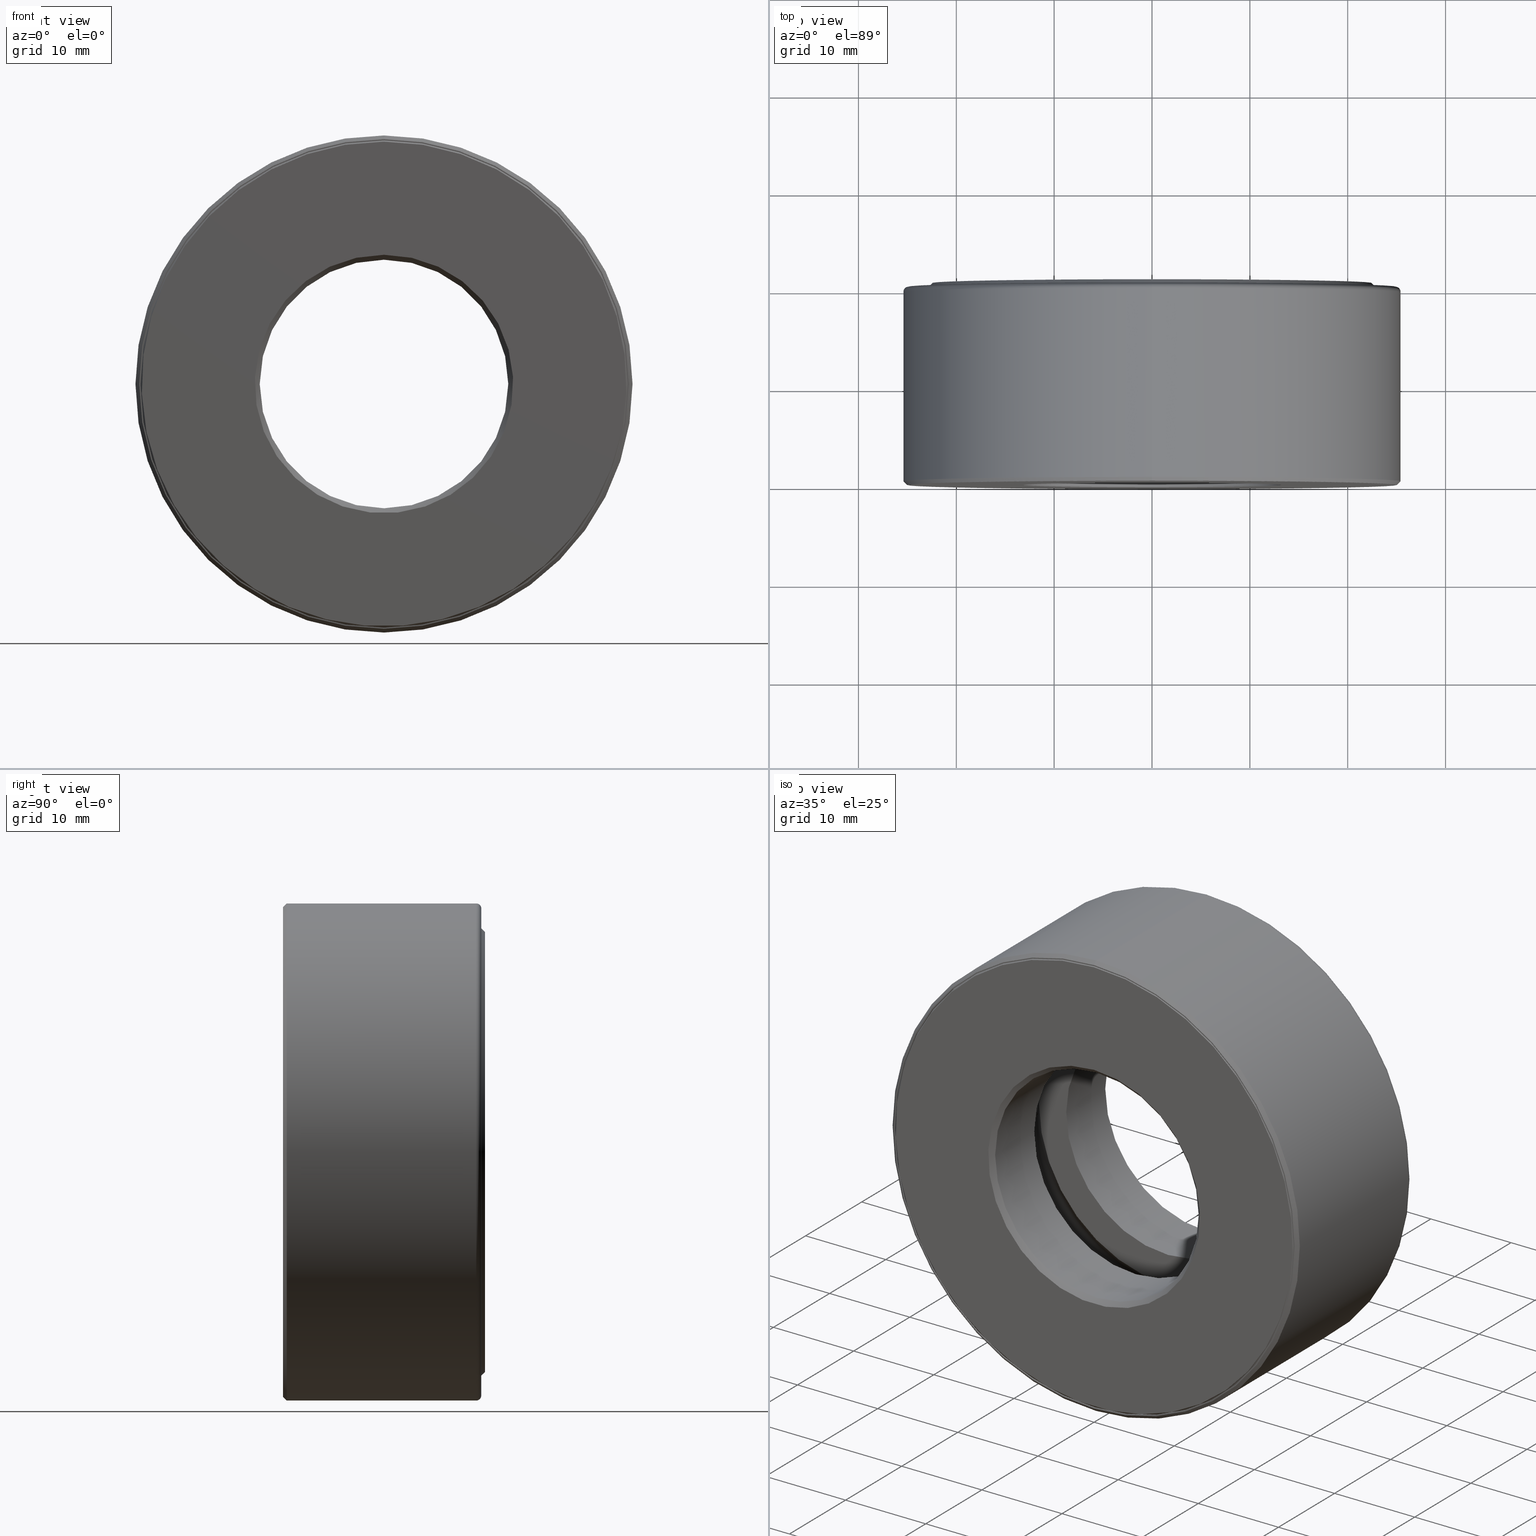
[diagram: canonical four-view strip — front | top / right | iso, engineering-drawing reading convention]
A machine part, canonical four-view strip (front | top / right | iso — engineering-drawing reading convention). The complete STEP part file that produces these views, byte-faithful:
ISO-10303-21;
HEADER;
FILE_DESCRIPTION (( 'STEP AP203' ),
    '1' );
FILE_NAME ('T-100-7.step',
    '2016-06-29T18:27:14',
    ( '' ),
    ( '' ),
    'SwSTEP 2.0',
    'SolidWorks 2016',
    '' );
FILE_SCHEMA (( 'CONFIG_CONTROL_DESIGN' ));
ENDSEC;

DATA;
#1 = DIRECTION ( 'NONE',  ( -0.0000000000000000000, 1.000000000000000000, -0.0000000000000000000 ) ) ;
#2 = APPROVAL_ROLE ( '' ) ;
#3 = FACE_BOUND ( 'NONE', #256, .T. ) ;
#4 = CARTESIAN_POINT ( 'NONE',  ( 0.0000000000000000000, 0.8125000000000001100, 0.0000000000000000000 ) ) ;
#5 = CLOSED_SHELL ( 'NONE', ( #597 ) ) ;
#6 = VERTEX_POINT ( 'NONE', #83 ) ;
#7 = ORIENTED_EDGE ( 'NONE', *, *, #259, .T. ) ;
#8 = DIRECTION ( 'NONE',  ( -0.0000000000000000000, 1.000000000000000000, -0.0000000000000000000 ) ) ;
#9 = EDGE_CURVE ( 'NONE', #76, #76, #583, .T. ) ;
#10 = PRODUCT_DEFINITION_FORMATION_WITH_SPECIFIED_SOURCE ( 'ANY', '', #509, .NOT_KNOWN. ) ;
#11 = TOROIDAL_SURFACE ( 'NONE', #329, 0.7834999999999998600, 0.1874999999999999700 ) ;
#12 = PERSON_AND_ORGANIZATION ( #556, #299 ) ;
#13 = EDGE_LOOP ( 'NONE', ( #81 ) ) ;
#14 = PLANE ( 'NONE',  #156 ) ;
#15 = SPHERICAL_SURFACE ( 'NONE', #41, 0.1874999999999999700 ) ;
#16 = CIRCLE ( 'NONE', #369, 0.9334999999999998900 ) ;
#17 = DIRECTION ( 'NONE',  ( 0.0000000000000000000, 0.0000000000000000000, 1.000000000000000000 ) ) ;
#18 = DIRECTION ( 'NONE',  ( 0.0000000000000000000, 0.0000000000000000000, -1.000000000000000000 ) ) ;
#19 = EDGE_CURVE ( 'NONE', #231, #231, #213, .T. ) ;
#20 = CC_DESIGN_PERSON_AND_ORGANIZATION_ASSIGNMENT ( #494, #569, ( #10 ) ) ;
#21 = VERTEX_POINT ( 'NONE', #174 ) ;
#22 = EDGE_LOOP ( 'NONE', ( #284 ) ) ;
#23 = DIRECTION ( 'NONE',  ( -0.0000000000000000000, 1.000000000000000000, -0.0000000000000000000 ) ) ;
#24 = CARTESIAN_POINT ( 'NONE',  ( 0.0000000000000000000, 0.7774999999999999700, 0.0000000000000000000 ) ) ;
#25 = CARTESIAN_POINT ( 'NONE',  ( 0.0000000000000000000, 0.02000000000000033300, 0.0000000000000000000 ) ) ;
#26 = CC_DESIGN_APPROVAL ( #330, ( #126 ) ) ;
#27 = DIRECTION ( 'NONE',  ( -0.0000000000000000000, 1.000000000000000000, -0.0000000000000000000 ) ) ;
#28 = ADVANCED_FACE ( 'NONE', ( #445, #161 ), #66, .F. ) ;
#29 = CIRCLE ( 'NONE', #513, 0.9799999999999999800 ) ;
#30 = DIRECTION ( 'NONE',  ( 0.0000000000000000000, -1.000000000000000000, 0.0000000000000000000 ) ) ;
#31 = EDGE_CURVE ( 'NONE', #313, #313, #105, .T. ) ;
#32 = DIRECTION ( 'NONE',  ( 0.0000000000000000000, 0.0000000000000000000, 1.000000000000000000 ) ) ;
#33 = APPROVAL_DATE_TIME ( #141, #571 ) ;
#34 = CLOSED_SHELL ( 'NONE', ( #474, #218, #148, #28, #560, #237, #96, #428 ) ) ;
#35 = ORIENTED_EDGE ( 'NONE', *, *, #539, .T. ) ;
#36 = DIRECTION ( 'NONE',  ( -0.0000000000000000000, 1.000000000000000000, -0.0000000000000000000 ) ) ;
#37 = EDGE_LOOP ( 'NONE', ( #540 ) ) ;
#38 = DIRECTION ( 'NONE',  ( 6.982962677686265900E-015, -0.0000000000000000000, 1.000000000000000000 ) ) ;
#39 = FACE_BOUND ( 'NONE', #71, .T. ) ;
#40 = EDGE_CURVE ( 'NONE', #171, #171, #191, .T. ) ;
#41 = AXIS2_PLACEMENT_3D ( 'NONE', #325, #38, #89 ) ;
#42 = CIRCLE ( 'NONE', #305, 0.5000000000000001100 ) ;
#43 = DATE_TIME_ROLE ( 'classification_date' ) ;
#44 = PERSON_AND_ORGANIZATION ( #556, #299 ) ;
#45 = ORIENTED_EDGE ( 'NONE', *, *, #31, .F. ) ;
#46 = VERTEX_POINT ( 'NONE', #124 ) ;
#47 = FACE_OUTER_BOUND ( 'NONE', #121, .T. ) ;
#48 = APPROVAL_STATUS ( 'not_yet_approved' ) ;
#49 = ORIENTED_EDGE ( 'NONE', *, *, #547, .T. ) ;
#50 = CARTESIAN_POINT ( 'NONE',  ( 0.0000000000000000000, 0.4062500000000000600, 0.0000000000000000000 ) ) ;
#51 = ORIENTED_EDGE ( 'NONE', *, *, #592, .F. ) ;
#52 = ADVANCED_FACE ( 'NONE', ( #176, #319 ), #220, .F. ) ;
#53 = AXIS2_PLACEMENT_3D ( 'NONE', #521, #528, #343 ) ;
#54 = AXIS2_PLACEMENT_3D ( 'NONE', #24, #122, #493 ) ;
#55 = CARTESIAN_POINT ( 'NONE',  ( 0.0000000000000000000, 0.7245000000000001400, 0.0000000000000000000 ) ) ;
#56 = CIRCLE ( 'NONE', #93, 0.9799999999999997600 ) ;
#57 = COORDINATED_UNIVERSAL_TIME_OFFSET ( 5, 0, .BEHIND. ) ;
#58 = AXIS2_PLACEMENT_3D ( 'NONE', #170, #404, #358 ) ;
#59 = DIRECTION ( 'NONE',  ( -0.0000000000000000000, 1.000000000000000000, 0.0000000000000000000 ) ) ;
#60 = VERTEX_POINT ( 'NONE', #501 ) ;
#61 = CONICAL_SURFACE ( 'NONE', #275, 0.9749999999999999800, 0.7853981633974246300 ) ;
#62 = DIRECTION ( 'NONE',  ( 0.0000000000000000000, 0.0000000000000000000, 1.000000000000000000 ) ) ;
#63 = EDGE_CURVE ( 'NONE', #278, #278, #112, .T. ) ;
#64 = COORDINATED_UNIVERSAL_TIME_OFFSET ( 5, 0, .BEHIND. ) ;
#65 = CARTESIAN_POINT ( 'NONE',  ( 0.0000000000000000000, 0.2937500000000000700, 0.0000000000000000000 ) ) ;
#66 = CYLINDRICAL_SURFACE ( 'NONE', #72, 0.5000000000000001100 ) ;
#67 = AXIS2_PLACEMENT_3D ( 'NONE', #215, #257, #311 ) ;
#68 = EDGE_LOOP ( 'NONE', ( #7 ) ) ;
#69 = FACE_BOUND ( 'NONE', #599, .T. ) ;
#70 = CARTESIAN_POINT ( 'NONE',  ( 0.0000000000000000000, 0.7974999999999999900, 0.0000000000000000000 ) ) ;
#71 = EDGE_LOOP ( 'NONE', ( #506 ) ) ;
#72 = AXIS2_PLACEMENT_3D ( 'NONE', #234, #601, #376 ) ;
#73 = DIRECTION ( 'NONE',  ( 0.0000000000000000000, 0.0000000000000000000, 1.000000000000000000 ) ) ;
#74 = MANIFOLD_SOLID_BREP ( 'Revolve2[1]', #566 ) ;
#75 = VERTEX_POINT ( 'NONE', #410 ) ;
#76 = VERTEX_POINT ( 'NONE', #372 ) ;
#77 = CIRCLE ( 'NONE', #447, 0.9799999999999997600 ) ;
#78 = CARTESIAN_POINT ( 'NONE',  ( 0.0000000000000000000, 0.005000000000000119800, 0.0000000000000000000 ) ) ;
#79 = FACE_OUTER_BOUND ( 'NONE', #365, .T. ) ;
#80 = EDGE_LOOP ( 'NONE', ( #371 ) ) ;
#81 = ORIENTED_EDGE ( 'NONE', *, *, #604, .F. ) ;
#82 = CARTESIAN_POINT ( 'NONE',  ( 0.0000000000000000000, 0.7974999999999999900, 0.9799999999999999800 ) ) ;
#83 = CARTESIAN_POINT ( 'NONE',  ( 0.0000000000000000000, 0.5187500000000000400, 0.5000000000000001100 ) ) ;
#84 = FACE_OUTER_BOUND ( 'NONE', #436, .T. ) ;
#85 = EDGE_CURVE ( 'NONE', #296, #296, #497, .T. ) ;
#86 = AXIS2_PLACEMENT_3D ( 'NONE', #507, #224, #320 ) ;
#87 = DIRECTION ( 'NONE',  ( 0.0000000000000000000, 0.0000000000000000000, 1.000000000000000000 ) ) ;
#88 = EDGE_LOOP ( 'NONE', ( #327 ) ) ;
#89 = DIRECTION ( 'NONE',  ( -1.000000000000000000, 0.0000000000000000000, 6.982962677686265900E-015 ) ) ;
#90 = DIRECTION ( 'NONE',  ( -0.0000000000000000000, 1.000000000000000000, -0.0000000000000000000 ) ) ;
#91 = CARTESIAN_POINT ( 'NONE',  ( 0.0000000000000000000, 0.4062500000000000600, 0.0000000000000000000 ) ) ;
#92 = VERTEX_POINT ( 'NONE', #82 ) ;
#93 = AXIS2_PLACEMENT_3D ( 'NONE', #434, #351, #114 ) ;
#94 = DATE_AND_TIME ( #281, #529 ) ;
#95 = ORIENTED_EDGE ( 'NONE', *, *, #201, .F. ) ;
#96 = ADVANCED_FACE ( 'NONE', ( #79, #207 ), #536, .T. ) ;
#97 = PERSON_AND_ORGANIZATION_ROLE ( 'classification_officer' ) ;
#98 = AXIS2_PLACEMENT_3D ( 'NONE', #162, #255, #531 ) ;
#99 = DIRECTION ( 'NONE',  ( -0.0000000000000000000, 1.000000000000000000, -0.0000000000000000000 ) ) ;
#100 =( NAMED_UNIT ( * ) PLANE_ANGLE_UNIT ( ) SI_UNIT ( $, .RADIAN. ) );
#101 = CARTESIAN_POINT ( 'NONE',  ( 0.0000000000000000000, 0.7774999999999999700, 0.0000000000000000000 ) ) ;
#102 = DIRECTION ( 'NONE',  ( 0.0000000000000000000, 0.0000000000000000000, -1.000000000000000000 ) ) ;
#103 = CIRCLE ( 'NONE', #125, 0.9749999999999999800 ) ;
#104 = EDGE_LOOP ( 'NONE', ( #272 ) ) ;
#105 = CIRCLE ( 'NONE', #280, 0.5000000000000001100 ) ;
#106 = PLANE ( 'NONE',  #179 ) ;
#107 = EDGE_CURVE ( 'NONE', #185, #185, #262, .T. ) ;
#108 = AXIS2_PLACEMENT_3D ( 'NONE', #461, #267, #565 ) ;
#109 = PLANE ( 'NONE',  #360 ) ;
#110 = FACE_BOUND ( 'NONE', #212, .T. ) ;
#111 = EDGE_LOOP ( 'NONE', ( #595 ) ) ;
#112 = CIRCLE ( 'NONE', #53, 0.9849999999999999900 ) ;
#113 = CARTESIAN_POINT ( 'NONE',  ( -2.157205236932476100E-016, 0.2937500000000000700, 0.0000000000000000000 ) ) ;
#114 = DIRECTION ( 'NONE',  ( 0.0000000000000000000, 0.0000000000000000000, 1.000000000000000000 ) ) ;
#115 = AXIS2_PLACEMENT_3D ( 'NONE', #4, #567, #102 ) ;
#116 = FACE_OUTER_BOUND ( 'NONE', #302, .T. ) ;
#117 = AXIS2_PLACEMENT_3D ( 'NONE', #455, #412, #183 ) ;
#118 = EDGE_LOOP ( 'NONE', ( #189 ) ) ;
#119 = ADVANCED_FACE ( 'NONE', ( #142, #3 ), #527, .F. ) ;
#120 = PLANE ( 'NONE',  #448 ) ;
#121 = EDGE_LOOP ( 'NONE', ( #546 ) ) ;
#122 = DIRECTION ( 'NONE',  ( -0.0000000000000000000, 1.000000000000000000, -0.0000000000000000000 ) ) ;
#123 = ADVANCED_FACE ( 'NONE', ( #505, #482 ), #308, .T. ) ;
#124 = CARTESIAN_POINT ( 'NONE',  ( 0.0000000000000000000, 0.2937500000000000700, 0.9334999999999998900 ) ) ;
#125 = AXIS2_PLACEMENT_3D ( 'NONE', #294, #344, #423 ) ;
#126 = PRODUCT_DEFINITION ( 'UNKNOWN', '', #10, #530 ) ;
#127 = FACE_OUTER_BOUND ( 'NONE', #460, .T. ) ;
#128 = CARTESIAN_POINT ( 'NONE',  ( 0.0000000000000000000, 0.8125000000000001100, 0.5200000000000001300 ) ) ;
#129 = VERTEX_POINT ( 'NONE', #500 ) ;
#130 = EDGE_LOOP ( 'NONE', ( #564 ) ) ;
#131 = ORIENTED_EDGE ( 'NONE', *, *, #592, .T. ) ;
#132 = ADVANCED_FACE ( 'NONE', ( #587, #166 ), #282, .F. ) ;
#133 = CARTESIAN_POINT ( 'NONE',  ( 0.0000000000000000000, -6.616194359655631800E-017, 0.9849999999999999900 ) ) ;
#134 = AXIS2_PLACEMENT_3D ( 'NONE', #91, #138, #477 ) ;
#135 = AXIS2_PLACEMENT_3D ( 'NONE', #315, #263, #586 ) ;
#136 = ORIENTED_EDGE ( 'NONE', *, *, #107, .T. ) ;
#137 = PERSON_AND_ORGANIZATION_ROLE ( 'creator' ) ;
#138 = DIRECTION ( 'NONE',  ( -0.0000000000000000000, 1.000000000000000000, -0.0000000000000000000 ) ) ;
#139 = VERTEX_POINT ( 'NONE', #555 ) ;
#140 = FACE_OUTER_BOUND ( 'NONE', #80, .T. ) ;
#141 = DATE_AND_TIME ( #580, #363 ) ;
#142 = FACE_OUTER_BOUND ( 'NONE', #427, .T. ) ;
#143 = DIRECTION ( 'NONE',  ( 0.0000000000000000000, 0.0000000000000000000, 1.000000000000000000 ) ) ;
#144 = ORIENTED_EDGE ( 'NONE', *, *, #274, .F. ) ;
#145 = ORIENTED_EDGE ( 'NONE', *, *, #472, .F. ) ;
#146 = EDGE_LOOP ( 'NONE', ( #144 ) ) ;
#147 = FACE_OUTER_BOUND ( 'NONE', #388, .T. ) ;
#148 = ADVANCED_FACE ( 'NONE', ( #260, #557 ), #106, .T. ) ;
#149 = CARTESIAN_POINT ( 'NONE',  ( 0.0000000000000000000, 0.8125000000000001100, 0.0000000000000000000 ) ) ;
#150 = VERTEX_POINT ( 'NONE', #510 ) ;
#151 = APPROVAL_PERSON_ORGANIZATION ( #44, #526, #233 ) ;
#152 = DIRECTION ( 'NONE',  ( -0.0000000000000000000, 1.000000000000000000, -0.0000000000000000000 ) ) ;
#153 = MANIFOLD_SOLID_BREP ( 'Revolve3', #301 ) ;
#154 = SPHERICAL_SURFACE ( 'NONE', #268, 0.1874999999999999700 ) ;
#155 = CARTESIAN_POINT ( 'NONE',  ( 0.0000000000000000000, 0.8125000000000001100, 0.0000000000000000000 ) ) ;
#156 = AXIS2_PLACEMENT_3D ( 'NONE', #113, #250, #581 ) ;
#157 = CC_DESIGN_PERSON_AND_ORGANIZATION_ASSIGNMENT ( #550, #137, ( #126 ) ) ;
#158 = APPROVAL_PERSON_ORGANIZATION ( #558, #571, #190 ) ;
#159 = ORIENTED_EDGE ( 'NONE', *, *, #321, .T. ) ;
#160 = ORIENTED_EDGE ( 'NONE', *, *, #547, .F. ) ;
#161 = FACE_OUTER_BOUND ( 'NONE', #22, .T. ) ;
#162 = CARTESIAN_POINT ( 'NONE',  ( 0.0000000000000000000, 0.01499999999999997700, 0.0000000000000000000 ) ) ;
#163 = DIRECTION ( 'NONE',  ( 0.0000000000000000000, -0.0000000000000000000, -1.000000000000000000 ) ) ;
#164 = CIRCLE ( 'NONE', #502, 0.9799999999999999800 ) ;
#165 = EDGE_CURVE ( 'NONE', #462, #462, #103, .T. ) ;
#166 = FACE_OUTER_BOUND ( 'NONE', #37, .T. ) ;
#167 = CALENDAR_DATE ( 2016, 29, 6 ) ;
#168 = ORIENTED_EDGE ( 'NONE', *, *, #238, .T. ) ;
#169 = DIRECTION ( 'NONE',  ( -0.0000000000000000000, 1.000000000000000000, -0.0000000000000000000 ) ) ;
#170 = CARTESIAN_POINT ( 'NONE',  ( 0.0000000000000000000, 0.5187500000000000400, 0.0000000000000000000 ) ) ;
#171 = VERTEX_POINT ( 'NONE', #551 ) ;
#172 = DIRECTION ( 'NONE',  ( 0.0000000000000000000, -1.000000000000000000, 0.0000000000000000000 ) ) ;
#173 = FACE_OUTER_BOUND ( 'NONE', #490, .T. ) ;
#174 = CARTESIAN_POINT ( 'NONE',  ( 0.0000000000000000000, 0.7774999999999999700, 0.9799999999999999800 ) ) ;
#175 = EDGE_LOOP ( 'NONE', ( #300 ) ) ;
#176 = FACE_OUTER_BOUND ( 'NONE', #457, .T. ) ;
#177 = CARTESIAN_POINT ( 'NONE',  ( 0.0000000000000000000, 0.5187499999999999300, 0.6334999999999998400 ) ) ;
#178 = CLOSED_SHELL ( 'NONE', ( #514 ) ) ;
#179 = AXIS2_PLACEMENT_3D ( 'NONE', #289, #431, #243 ) ;
#180 =( GEOMETRIC_REPRESENTATION_CONTEXT ( 3 ) GLOBAL_UNCERTAINTY_ASSIGNED_CONTEXT ( ( #362 ) ) GLOBAL_UNIT_ASSIGNED_CONTEXT ( ( #515, #100, #426 ) ) REPRESENTATION_CONTEXT ( 'NONE', 'WORKASPACE' ) );
#181 = FACE_OUTER_BOUND ( 'NONE', #466, .T. ) ;
#182 = CARTESIAN_POINT ( 'NONE',  ( 0.0000000000000000000, 0.2937500000000001200, 0.5000000000000001100 ) ) ;
#183 = DIRECTION ( 'NONE',  ( 0.0000000000000000000, 0.0000000000000000000, 1.000000000000000000 ) ) ;
#184 = APPLICATION_CONTEXT ( 'configuration controlled 3d designs of mechanical parts and assemblies' ) ;
#185 = VERTEX_POINT ( 'NONE', #271 ) ;
#186 = FACE_OUTER_BOUND ( 'NONE', #13, .T. ) ;
#187 = PERSON_AND_ORGANIZATION_ROLE ( 'design_supplier' ) ;
#188 = DATE_AND_TIME ( #535, #317 ) ;
#189 = ORIENTED_EDGE ( 'NONE', *, *, #165, .T. ) ;
#190 = APPROVAL_ROLE ( '' ) ;
#191 = CIRCLE ( 'NONE', #598, 0.9200000000000000400 ) ;
#192 = DIRECTION ( 'NONE',  ( -0.0000000000000000000, 1.000000000000000000, 0.0000000000000000000 ) ) ;
#193 = ORIENTED_EDGE ( 'NONE', *, *, #9, .F. ) ;
#194 = SECURITY_CLASSIFICATION_LEVEL ( 'unclassified' ) ;
#195 = CIRCLE ( 'NONE', #453, 0.5000000000000000000 ) ;
#196 = DIRECTION ( 'NONE',  ( 0.0000000000000000000, 0.0000000000000000000, 1.000000000000000000 ) ) ;
#197 = FACE_BOUND ( 'NONE', #425, .T. ) ;
#198 = DIRECTION ( 'NONE',  ( 0.0000000000000000000, -1.000000000000000000, 0.0000000000000000000 ) ) ;
#199 = LOCAL_TIME ( 14, 27, 14.00000000000000000, #64 ) ;
#200 = EDGE_LOOP ( 'NONE', ( #483 ) ) ;
#201 = EDGE_CURVE ( 'NONE', #345, #345, #42, .T. ) ;
#202 = SECURITY_CLASSIFICATION ( '', '', #194 ) ;
#203 = CARTESIAN_POINT ( 'NONE',  ( 0.0000000000000000000, 0.2937500000000000700, 0.0000000000000000000 ) ) ;
#204 = CYLINDRICAL_SURFACE ( 'NONE', #395, 0.9799999999999999800 ) ;
#205 = MANIFOLD_SOLID_BREP ( 'BALLS[1]', #178 ) ;
#206 = COORDINATED_UNIVERSAL_TIME_OFFSET ( 5, 0, .BEHIND. ) ;
#207 = FACE_BOUND ( 'NONE', #389, .T. ) ;
#208 = EDGE_LOOP ( 'NONE', ( #401 ) ) ;
#209 = EDGE_LOOP ( 'NONE', ( #310 ) ) ;
#210 = AXIS2_PLACEMENT_3D ( 'NONE', #391, #198, #573 ) ;
#211 = DIRECTION ( 'NONE',  ( 0.0000000000000000000, 0.0000000000000000000, 1.000000000000000000 ) ) ;
#212 = EDGE_LOOP ( 'NONE', ( #381 ) ) ;
#213 = CIRCLE ( 'NONE', #418, 0.9334999999999998900 ) ;
#214 = DIRECTION ( 'NONE',  ( -0.0000000000000000000, 1.000000000000000000, -0.0000000000000000000 ) ) ;
#215 = CARTESIAN_POINT ( 'NONE',  ( 0.0000000000000000000, 0.0000000000000000000, 0.0000000000000000000 ) ) ;
#216 = AXIS2_PLACEMENT_3D ( 'NONE', #446, #169, #219 ) ;
#217 = DATE_AND_TIME ( #167, #309 ) ;
#218 = ADVANCED_FACE ( 'NONE', ( #116, #593 ), #11, .F. ) ;
#219 = DIRECTION ( 'NONE',  ( 0.0000000000000000000, 0.0000000000000000000, 1.000000000000000000 ) ) ;
#220 = TOROIDAL_SURFACE ( 'NONE', #134, 0.7834999999999998600, 0.1874999999999999700 ) ;
#221 = EDGE_LOOP ( 'NONE', ( #355 ) ) ;
#222 = AXIS2_PLACEMENT_3D ( 'NONE', #518, #8, #575 ) ;
#223 = AXIS2_PLACEMENT_3D ( 'NONE', #449, #548, #543 ) ;
#224 = DIRECTION ( 'NONE',  ( -0.0000000000000000000, 1.000000000000000000, -0.0000000000000000000 ) ) ;
#225 = EDGE_LOOP ( 'NONE', ( #600 ) ) ;
#226 = CARTESIAN_POINT ( 'NONE',  ( 0.0000000000000000000, 0.5187500000000000400, 0.9729999999999998600 ) ) ;
#227 = DIRECTION ( 'NONE',  ( 0.0000000000000000000, 0.0000000000000000000, 1.000000000000000000 ) ) ;
#228 = CARTESIAN_POINT ( 'NONE',  ( 0.0000000000000000000, 0.5187499999999999300, 0.9334999999999998900 ) ) ;
#229 = AXIS2_PLACEMENT_3D ( 'NONE', #432, #346, #439 ) ;
#230 = AXIS2_PLACEMENT_3D ( 'NONE', #366, #454, #374 ) ;
#231 = VERTEX_POINT ( 'NONE', #228 ) ;
#232 = ADVANCED_FACE ( 'NONE', ( #377, #197 ), #486, .F. ) ;
#233 = APPROVAL_ROLE ( '' ) ;
#234 = CARTESIAN_POINT ( 'NONE',  ( 0.0000000000000000000, 0.0000000000000000000, 0.0000000000000000000 ) ) ;
#235 = FACE_OUTER_BOUND ( 'NONE', #414, .T. ) ;
#236 =( LENGTH_UNIT ( ) NAMED_UNIT ( * ) SI_UNIT ( $, .METRE. ) );
#237 = ADVANCED_FACE ( 'NONE', ( #244, #110 ), #109, .T. ) ;
#238 = EDGE_CURVE ( 'NONE', #516, #516, #481, .T. ) ;
#239 = AXIS2_PLACEMENT_3D ( 'NONE', #591, #276, #87 ) ;
#240 = EDGE_LOOP ( 'NONE', ( #452 ) ) ;
#241 = DIRECTION ( 'NONE',  ( 0.0000000000000000000, 0.0000000000000000000, 1.000000000000000000 ) ) ;
#242 = DIRECTION ( 'NONE',  ( -0.0000000000000000000, 1.000000000000000000, -0.0000000000000000000 ) ) ;
#243 = DIRECTION ( 'NONE',  ( 0.0000000000000000000, -0.0000000000000000000, -1.000000000000000000 ) ) ;
#244 = FACE_OUTER_BOUND ( 'NONE', #495, .T. ) ;
#245 = DIRECTION ( 'NONE',  ( -0.0000000000000000000, 1.000000000000000000, 0.0000000000000000000 ) ) ;
#246 = EDGE_LOOP ( 'NONE', ( #322 ) ) ;
#247 = AXIS2_PLACEMENT_3D ( 'NONE', #456, #36, #323 ) ;
#248 = ADVANCED_FACE ( 'NONE', ( #353, #533 ), #534, .T. ) ;
#249 = DIRECTION ( 'NONE',  ( 0.0000000000000000000, 0.0000000000000000000, 1.000000000000000000 ) ) ;
#250 = DIRECTION ( 'NONE',  ( 0.0000000000000000000, -1.000000000000000000, 0.0000000000000000000 ) ) ;
#251 = CIRCLE ( 'NONE', #117, 0.9200000000000000400 ) ;
#252 = AXIS2_PLACEMENT_3D ( 'NONE', #400, #541, #485 ) ;
#253 = DIRECTION ( 'NONE',  ( 0.0000000000000000000, 0.0000000000000000000, 1.000000000000000000 ) ) ;
#254 = EDGE_LOOP ( 'NONE', ( #45 ) ) ;
#255 = DIRECTION ( 'NONE',  ( -0.0000000000000000000, 1.000000000000000000, -0.0000000000000000000 ) ) ;
#256 = EDGE_LOOP ( 'NONE', ( #131 ) ) ;
#257 = DIRECTION ( 'NONE',  ( -0.0000000000000000000, 1.000000000000000000, -0.0000000000000000000 ) ) ;
#258 = DIRECTION ( 'NONE',  ( -0.0000000000000000000, 1.000000000000000000, -0.0000000000000000000 ) ) ;
#259 = EDGE_CURVE ( 'NONE', #92, #92, #164, .T. ) ;
#260 = FACE_BOUND ( 'NONE', #240, .T. ) ;
#261 = PLANE ( 'NONE',  #135 ) ;
#262 = CIRCLE ( 'NONE', #373, 0.9729999999999997500 ) ;
#263 = DIRECTION ( 'NONE',  ( -0.0000000000000000000, 1.000000000000000000, 0.0000000000000000000 ) ) ;
#264 = DIRECTION ( 'NONE',  ( 1.000000000000000000, 0.0000000000000000000, -1.047444401652940000E-014 ) ) ;
#265 = CONICAL_SURFACE ( 'NONE', #86, 0.9849999999999999900, 0.7853981633974415100 ) ;
#266 = CYLINDRICAL_SURFACE ( 'NONE', #67, 0.9729999999999997500 ) ;
#267 = DIRECTION ( 'NONE',  ( 0.0000000000000000000, 0.0000000000000000000, 1.000000000000000000 ) ) ;
#268 = AXIS2_PLACEMENT_3D ( 'NONE', #396, #264, #357 ) ;
#269 = CIRCLE ( 'NONE', #252, 1.000000000000000000 ) ;
#270 = COORDINATED_UNIVERSAL_TIME_OFFSET ( 5, 0, .BEHIND. ) ;
#271 = CARTESIAN_POINT ( 'NONE',  ( 0.0000000000000000000, 0.7245000000000001400, 0.9729999999999997500 ) ) ;
#272 = ORIENTED_EDGE ( 'NONE', *, *, #63, .F. ) ;
#273 = EDGE_LOOP ( 'NONE', ( #489 ) ) ;
#274 = EDGE_CURVE ( 'NONE', #576, #576, #269, .T. ) ;
#275 = AXIS2_PLACEMENT_3D ( 'NONE', #416, #552, #594 ) ;
#276 = DIRECTION ( 'NONE',  ( -0.0000000000000000000, 1.000000000000000000, -0.0000000000000000000 ) ) ;
#277 = CARTESIAN_POINT ( 'NONE',  ( 0.0000000000000000000, 0.2937500000000000700, 0.9799999999999997600 ) ) ;
#278 = VERTEX_POINT ( 'NONE', #133 ) ;
#279 = CYLINDRICAL_SURFACE ( 'NONE', #229, 0.9799999999999999800 ) ;
#280 = AXIS2_PLACEMENT_3D ( 'NONE', #467, #242, #143 ) ;
#281 = CALENDAR_DATE ( 2016, 29, 6 ) ;
#282 = PLANE ( 'NONE',  #210 ) ;
#283 = ORIENTED_EDGE ( 'NONE', *, *, #19, .F. ) ;
#284 = ORIENTED_EDGE ( 'NONE', *, *, #570, .F. ) ;
#285 = ORIENTED_EDGE ( 'NONE', *, *, #40, .T. ) ;
#286 = CARTESIAN_POINT ( 'NONE',  ( -9.956752322577165600E-033, 2.667820306312757000E-018, 0.0000000000000000000 ) ) ;
#287 = DIRECTION ( 'NONE',  ( -0.0000000000000000000, 1.000000000000000000, -0.0000000000000000000 ) ) ;
#288 = ADVANCED_FACE ( 'NONE', ( ), #487, .T. ) ;
#289 = CARTESIAN_POINT ( 'NONE',  ( -2.653831735418240000E-016, 0.5187500000000000400, 0.0000000000000000000 ) ) ;
#290 = EDGE_CURVE ( 'NONE', #359, #359, #77, .T. ) ;
#291 = MANIFOLD_SOLID_BREP ( 'BALLS[3]', #588 ) ;
#292 = PRODUCT_DEFINITION_SHAPE ( 'NONE', 'NONE',  #126 ) ;
#293 = CC_DESIGN_PERSON_AND_ORGANIZATION_ASSIGNMENT ( #387, #187, ( #10 ) ) ;
#294 = CARTESIAN_POINT ( 'NONE',  ( 0.0000000000000000000, -6.296055922898107200E-017, 0.0000000000000000000 ) ) ;
#295 = DIRECTION ( 'NONE',  ( 0.0000000000000000000, 0.0000000000000000000, 1.000000000000000000 ) ) ;
#296 = VERTEX_POINT ( 'NONE', #128 ) ;
#297 = DIRECTION ( 'NONE',  ( 1.000000000000000000, 0.0000000000000000000, 0.0000000000000000000 ) ) ;
#298 = CARTESIAN_POINT ( 'NONE',  ( 0.0000000000000000000, 0.0000000000000000000, 0.0000000000000000000 ) ) ;
#299 = ORGANIZATION ( 'UNSPECIFIED', 'UNSPECIFIED', '' ) ;
#300 = ORIENTED_EDGE ( 'NONE', *, *, #40, .F. ) ;
#301 = CLOSED_SHELL ( 'NONE', ( #288 ) ) ;
#302 = EDGE_LOOP ( 'NONE', ( #596 ) ) ;
#303 = CARTESIAN_POINT ( 'NONE',  ( -0.7834999999999998600, 0.4062500000000000600, 0.0000000000000000000 ) ) ;
#304 = CIRCLE ( 'NONE', #54, 0.9799999999999999800 ) ;
#305 = AXIS2_PLACEMENT_3D ( 'NONE', #469, #1, #337 ) ;
#306 = AXIS2_PLACEMENT_3D ( 'NONE', #307, #27, #496 ) ;
#307 = CARTESIAN_POINT ( 'NONE',  ( 0.0000000000000000000, 0.5187499999999999300, 0.0000000000000000000 ) ) ;
#308 = TOROIDAL_SURFACE ( 'NONE', #222, 0.9799999999999999800, 0.02000000000000005900 ) ;
#309 = LOCAL_TIME ( 14, 27, 14.00000000000000000, #57 ) ;
#310 = ORIENTED_EDGE ( 'NONE', *, *, #385, .T. ) ;
#311 = DIRECTION ( 'NONE',  ( 0.0000000000000000000, 0.0000000000000000000, 1.000000000000000000 ) ) ;
#312 = DIRECTION ( 'NONE',  ( 0.0000000000000000000, -1.000000000000000000, 0.0000000000000000000 ) ) ;
#313 = VERTEX_POINT ( 'NONE', #367 ) ;
#314 = MANIFOLD_SOLID_BREP ( 'Revolve2[2]', #34 ) ;
#315 = CARTESIAN_POINT ( 'NONE',  ( 0.0000000000000000000, 0.7774999999999999700, 0.0000000000000000000 ) ) ;
#316 = CONICAL_SURFACE ( 'NONE', #216, 0.5000000000000001100, 0.7853981633974415100 ) ;
#317 = LOCAL_TIME ( 14, 27, 14.00000000000000000, #206 ) ;
#318 = ORIENTED_EDGE ( 'NONE', *, *, #539, .F. ) ;
#319 = FACE_OUTER_BOUND ( 'NONE', #209, .T. ) ;
#320 = DIRECTION ( 'NONE',  ( 0.0000000000000000000, 0.0000000000000000000, 1.000000000000000000 ) ) ;
#321 = EDGE_CURVE ( 'NONE', #60, #60, #56, .T. ) ;
#322 = ORIENTED_EDGE ( 'NONE', *, *, #290, .T. ) ;
#323 = DIRECTION ( 'NONE',  ( 0.0000000000000000000, 0.0000000000000000000, 1.000000000000000000 ) ) ;
#324 = CIRCLE ( 'NONE', #58, 0.9729999999999998600 ) ;
#325 = CARTESIAN_POINT ( 'NONE',  ( 0.7834999999999998600, 0.4062500000000000600, -5.471151257967188600E-015 ) ) ;
#326 = DIRECTION ( 'NONE',  ( -0.0000000000000000000, 1.000000000000000000, -0.0000000000000000000 ) ) ;
#327 = ORIENTED_EDGE ( 'NONE', *, *, #274, .T. ) ;
#328 = CARTESIAN_POINT ( 'NONE',  ( 0.0000000000000000000, 0.8125000000000001100, 0.8849999999999996800 ) ) ;
#329 = AXIS2_PLACEMENT_3D ( 'NONE', #50, #287, #478 ) ;
#330 = APPROVAL ( #48, 'UNSPECIFIED' ) ;
#331 = FACE_OUTER_BOUND ( 'NONE', #356, .T. ) ;
#332 = FACE_OUTER_BOUND ( 'NONE', #273, .T. ) ;
#333 = PERSON_AND_ORGANIZATION_ROLE ( 'design_owner' ) ;
#334 = ADVANCED_FACE ( 'NONE', ( #352, #430 ), #14, .F. ) ;
#335 = ORIENTED_EDGE ( 'NONE', *, *, #321, .F. ) ;
#336 = CARTESIAN_POINT ( 'NONE',  ( 0.0000000000000000000, 0.2937500000000001200, 0.0000000000000000000 ) ) ;
#337 = DIRECTION ( 'NONE',  ( 0.0000000000000000000, 0.0000000000000000000, 1.000000000000000000 ) ) ;
#338 = CARTESIAN_POINT ( 'NONE',  ( 0.0000000000000000000, 0.8125000000000001100, 0.0000000000000000000 ) ) ;
#339 = AXIS2_PLACEMENT_3D ( 'NONE', #338, #390, #523 ) ;
#340 = CC_DESIGN_SECURITY_CLASSIFICATION ( #202, ( #10 ) ) ;
#341 = DIRECTION ( 'NONE',  ( -0.0000000000000000000, 1.000000000000000000, -0.0000000000000000000 ) ) ;
#342 = EDGE_LOOP ( 'NONE', ( #145 ) ) ;
#343 = DIRECTION ( 'NONE',  ( 0.0000000000000000000, 0.0000000000000000000, 1.000000000000000000 ) ) ;
#344 = DIRECTION ( 'NONE',  ( -0.0000000000000000000, 1.000000000000000000, -0.0000000000000000000 ) ) ;
#345 = VERTEX_POINT ( 'NONE', #182 ) ;
#346 = DIRECTION ( 'NONE',  ( -0.0000000000000000000, 1.000000000000000000, -0.0000000000000000000 ) ) ;
#347 = PERSON_AND_ORGANIZATION ( #556, #299 ) ;
#348 = EDGE_LOOP ( 'NONE', ( #476 ) ) ;
#349 = EDGE_CURVE ( 'NONE', #75, #75, #368, .T. ) ;
#350 = FACE_BOUND ( 'NONE', #225, .T. ) ;
#351 = DIRECTION ( 'NONE',  ( -0.0000000000000000000, 1.000000000000000000, -0.0000000000000000000 ) ) ;
#352 = FACE_BOUND ( 'NONE', #348, .T. ) ;
#353 = FACE_OUTER_BOUND ( 'NONE', #146, .T. ) ;
#354 = DIRECTION ( 'NONE',  ( 0.0000000000000000000, 0.0000000000000000000, 1.000000000000000000 ) ) ;
#355 = ORIENTED_EDGE ( 'NONE', *, *, #349, .T. ) ;
#356 = EDGE_LOOP ( 'NONE', ( #520 ) ) ;
#357 = DIRECTION ( 'NONE',  ( 1.047444401652940000E-014, 0.0000000000000000000, 1.000000000000000000 ) ) ;
#358 = DIRECTION ( 'NONE',  ( 0.0000000000000000000, 0.0000000000000000000, 1.000000000000000000 ) ) ;
#359 = VERTEX_POINT ( 'NONE', #277 ) ;
#360 = AXIS2_PLACEMENT_3D ( 'NONE', #149, #245, #249 ) ;
#361 = CC_DESIGN_APPROVAL ( #526, ( #10 ) ) ;
#362 = UNCERTAINTY_MEASURE_WITH_UNIT (LENGTH_MEASURE( 1.000000000000000100E-005 ), #515, 'distance_accuracy_value', 'NONE');
#363 = LOCAL_TIME ( 14, 27, 14.00000000000000000, #545 ) ;
#364 = DIRECTION ( 'NONE',  ( 0.0000000000000000000, 0.0000000000000000000, -1.000000000000000000 ) ) ;
#365 = EDGE_LOOP ( 'NONE', ( #136 ) ) ;
#366 = CARTESIAN_POINT ( 'NONE',  ( 0.0000000000000000000, 0.0000000000000000000, 0.0000000000000000000 ) ) ;
#367 = CARTESIAN_POINT ( 'NONE',  ( 0.0000000000000000000, 0.7924999999999997600, 0.5000000000000001100 ) ) ;
#368 = CIRCLE ( 'NONE', #98, 0.9999999999999998900 ) ;
#369 = AXIS2_PLACEMENT_3D ( 'NONE', #203, #578, #295 ) ;
#370 = CARTESIAN_POINT ( 'NONE',  ( 0.0000000000000000000, 6.829619984160658000E-017, 0.5200000000000000200 ) ) ;
#371 = ORIENTED_EDGE ( 'NONE', *, *, #201, .T. ) ;
#372 = CARTESIAN_POINT ( 'NONE',  ( 0.0000000000000000000, 0.2937500000000001200, 0.6334999999999998400 ) ) ;
#373 = AXIS2_PLACEMENT_3D ( 'NONE', #55, #99, #393 ) ;
#374 = DIRECTION ( 'NONE',  ( 0.0000000000000000000, 0.0000000000000000000, 1.000000000000000000 ) ) ;
#375 = FACE_OUTER_BOUND ( 'NONE', #175, .T. ) ;
#376 = DIRECTION ( 'NONE',  ( 0.0000000000000000000, 0.0000000000000000000, 1.000000000000000000 ) ) ;
#377 = FACE_OUTER_BOUND ( 'NONE', #104, .T. ) ;
#378 = APPROVAL_STATUS ( 'not_yet_approved' ) ;
#379 = DATE_AND_TIME ( #407, #199 ) ;
#380 = DIRECTION ( 'NONE',  ( -0.0000000000000000000, 1.000000000000000000, -0.0000000000000000000 ) ) ;
#381 = ORIENTED_EDGE ( 'NONE', *, *, #85, .F. ) ;
#382 = ADVANCED_BREP_SHAPE_REPRESENTATION ( 'T-100-7', ( #74, #314, #153, #205, #405, #291, #108 ), #180 ) ;
#383 = APPROVAL_STATUS ( 'not_yet_approved' ) ;
#384 = FACE_BOUND ( 'NONE', #254, .T. ) ;
#385 = EDGE_CURVE ( 'NONE', #46, #46, #16, .T. ) ;
#386 = CC_DESIGN_PERSON_AND_ORGANIZATION_ASSIGNMENT ( #347, #97, ( #202 ) ) ;
#387 = PERSON_AND_ORGANIZATION ( #556, #299 ) ;
#388 = EDGE_LOOP ( 'NONE', ( #537 ) ) ;
#389 = EDGE_LOOP ( 'NONE', ( #475 ) ) ;
#390 = DIRECTION ( 'NONE',  ( -0.0000000000000000000, 1.000000000000000000, -0.0000000000000000000 ) ) ;
#391 = CARTESIAN_POINT ( 'NONE',  ( 7.513860937629951600E-017, 0.2937500000000001200, 0.0000000000000000000 ) ) ;
#392 = CONICAL_SURFACE ( 'NONE', #492, 0.5000000000000000000, 0.7853981633974431700 ) ;
#393 = DIRECTION ( 'NONE',  ( 0.0000000000000000000, 0.0000000000000000000, 1.000000000000000000 ) ) ;
#394 = AXIS2_PLACEMENT_3D ( 'NONE', #155, #23, #354 ) ;
#395 = AXIS2_PLACEMENT_3D ( 'NONE', #498, #214, #450 ) ;
#396 = CARTESIAN_POINT ( 'NONE',  ( -8.206726886950784100E-015, 0.4062500000000000600, -0.7834999999999998600 ) ) ;
#397 = CIRCLE ( 'NONE', #247, 0.5200000000000000200 ) ;
#398 = FACE_BOUND ( 'NONE', #438, .T. ) ;
#399 = DIRECTION ( 'NONE',  ( -0.0000000000000000000, 1.000000000000000000, -0.0000000000000000000 ) ) ;
#400 = CARTESIAN_POINT ( 'NONE',  ( 0.0000000000000000000, 0.7774999999999999700, 0.0000000000000000000 ) ) ;
#401 = ORIENTED_EDGE ( 'NONE', *, *, #107, .F. ) ;
#402 = ORIENTED_EDGE ( 'NONE', *, *, #19, .T. ) ;
#403 = CIRCLE ( 'NONE', #306, 0.6334999999999998400 ) ;
#404 = DIRECTION ( 'NONE',  ( -0.0000000000000000000, 1.000000000000000000, -0.0000000000000000000 ) ) ;
#405 = MANIFOLD_SOLID_BREP ( 'BALLS[2]', #5 ) ;
#406 = DIRECTION ( 'NONE',  ( -0.0000000000000000000, 1.000000000000000000, -0.0000000000000000000 ) ) ;
#407 = CALENDAR_DATE ( 2016, 29, 6 ) ;
#408 = DIRECTION ( 'NONE',  ( 0.0000000000000000000, -0.0000000000000000000, -1.000000000000000000 ) ) ;
#409 = CARTESIAN_POINT ( 'NONE',  ( 8.969279409578062500E-016, 0.5187500000000000400, 0.0000000000000000000 ) ) ;
#410 = CARTESIAN_POINT ( 'NONE',  ( 0.0000000000000000000, 0.01499999999999997700, 0.9999999999999998900 ) ) ;
#411 = PERSON_AND_ORGANIZATION ( #556, #299 ) ;
#412 = DIRECTION ( 'NONE',  ( -0.0000000000000000000, 1.000000000000000000, -0.0000000000000000000 ) ) ;
#413 = CC_DESIGN_DATE_AND_TIME_ASSIGNMENT ( #188, #43, ( #202 ) ) ;
#414 = EDGE_LOOP ( 'NONE', ( #49 ) ) ;
#415 = EDGE_LOOP ( 'NONE', ( #318 ) ) ;
#416 = CARTESIAN_POINT ( 'NONE',  ( 0.0000000000000000000, -6.296055922898107200E-017, 0.0000000000000000000 ) ) ;
#417 = CARTESIAN_POINT ( 'NONE',  ( 0.0000000000000000000, 0.5187499999999999300, 0.0000000000000000000 ) ) ;
#418 = AXIS2_PLACEMENT_3D ( 'NONE', #417, #380, #464 ) ;
#419 = ADVANCED_FACE ( 'NONE', ( #605, #235 ), #279, .F. ) ;
#420 = FACE_BOUND ( 'NONE', #118, .T. ) ;
#421 = ADVANCED_FACE ( 'NONE', ( ), #154, .T. ) ;
#422 = APPROVAL_DATE_TIME ( #379, #330 ) ;
#423 = DIRECTION ( 'NONE',  ( 0.0000000000000000000, 0.0000000000000000000, 1.000000000000000000 ) ) ;
#424 = ORIENTED_EDGE ( 'NONE', *, *, #290, .F. ) ;
#425 = EDGE_LOOP ( 'NONE', ( #159 ) ) ;
#426 =( NAMED_UNIT ( * ) SI_UNIT ( $, .STERADIAN. ) SOLID_ANGLE_UNIT ( ) );
#427 = EDGE_LOOP ( 'NONE', ( #484 ) ) ;
#428 = ADVANCED_FACE ( 'NONE', ( #127, #442 ), #266, .T. ) ;
#429 = EDGE_CURVE ( 'NONE', #139, #139, #195, .T. ) ;
#430 = FACE_OUTER_BOUND ( 'NONE', #246, .T. ) ;
#431 = DIRECTION ( 'NONE',  ( 0.0000000000000000000, -1.000000000000000000, 0.0000000000000000000 ) ) ;
#432 = CARTESIAN_POINT ( 'NONE',  ( 0.0000000000000000000, 0.0000000000000000000, 0.0000000000000000000 ) ) ;
#433 = VERTEX_POINT ( 'NONE', #226 ) ;
#434 = CARTESIAN_POINT ( 'NONE',  ( 0.0000000000000000000, -6.398779871991658700E-017, 0.0000000000000000000 ) ) ;
#435 = EDGE_LOOP ( 'NONE', ( #283 ) ) ;
#436 = EDGE_LOOP ( 'NONE', ( #51 ) ) ;
#437 = ADVANCED_FACE ( 'NONE', ( #517, #590 ), #444, .F. ) ;
#438 = EDGE_LOOP ( 'NONE', ( #285 ) ) ;
#439 = DIRECTION ( 'NONE',  ( 0.0000000000000000000, 0.0000000000000000000, 1.000000000000000000 ) ) ;
#440 = AXIS2_PLACEMENT_3D ( 'NONE', #286, #192, #241 ) ;
#441 = CC_DESIGN_PERSON_AND_ORGANIZATION_ASSIGNMENT ( #411, #333, ( #509 ) ) ;
#442 = FACE_OUTER_BOUND ( 'NONE', #208, .T. ) ;
#443 = ORIENTED_EDGE ( 'NONE', *, *, #604, .T. ) ;
#444 = PLANE ( 'NONE',  #480 ) ;
#445 = FACE_OUTER_BOUND ( 'NONE', #200, .T. ) ;
#446 = CARTESIAN_POINT ( 'NONE',  ( 0.0000000000000000000, 0.7924999999999997600, 0.0000000000000000000 ) ) ;
#447 = AXIS2_PLACEMENT_3D ( 'NONE', #65, #538, #62 ) ;
#448 = AXIS2_PLACEMENT_3D ( 'NONE', #409, #172, #408 ) ;
#449 = CARTESIAN_POINT ( 'NONE',  ( 2.735575628983594300E-015, 0.4062500000000000600, 0.7834999999999998600 ) ) ;
#450 = DIRECTION ( 'NONE',  ( 0.0000000000000000000, 0.0000000000000000000, 1.000000000000000000 ) ) ;
#451 = APPROVAL_PERSON_ORGANIZATION ( #12, #330, #2 ) ;
#452 = ORIENTED_EDGE ( 'NONE', *, *, #570, .T. ) ;
#453 = AXIS2_PLACEMENT_3D ( 'NONE', #544, #258, #73 ) ;
#454 = DIRECTION ( 'NONE',  ( -0.0000000000000000000, 1.000000000000000000, -0.0000000000000000000 ) ) ;
#455 = CARTESIAN_POINT ( 'NONE',  ( 0.0000000000000000000, 0.7974999999999999900, 0.0000000000000000000 ) ) ;
#456 = CARTESIAN_POINT ( 'NONE',  ( 0.0000000000000000000, 6.829619984160658000E-017, 0.0000000000000000000 ) ) ;
#457 = EDGE_LOOP ( 'NONE', ( #193 ) ) ;
#458 = AXIS2_PLACEMENT_3D ( 'NONE', #582, #59, #253 ) ;
#459 = CC_DESIGN_DATE_AND_TIME_ASSIGNMENT ( #94, #603, ( #126 ) ) ;
#460 = EDGE_LOOP ( 'NONE', ( #35 ) ) ;
#461 = CARTESIAN_POINT ( 'NONE',  ( 0.0000000000000000000, 0.0000000000000000000, 0.0000000000000000000 ) ) ;
#462 = VERTEX_POINT ( 'NONE', #559 ) ;
#463 = APPLICATION_CONTEXT ( 'configuration controlled 3d designs of mechanical parts and assemblies' ) ;
#464 = DIRECTION ( 'NONE',  ( 0.0000000000000000000, 0.0000000000000000000, 1.000000000000000000 ) ) ;
#465 = EDGE_LOOP ( 'NONE', ( #335 ) ) ;
#466 = EDGE_LOOP ( 'NONE', ( #443 ) ) ;
#467 = CARTESIAN_POINT ( 'NONE',  ( 0.0000000000000000000, 0.7924999999999997600, 0.0000000000000000000 ) ) ;
#468 = ADVANCED_FACE ( 'NONE', ( #84, #39 ), #392, .F. ) ;
#469 = CARTESIAN_POINT ( 'NONE',  ( 0.0000000000000000000, 0.2937500000000001200, 0.0000000000000000000 ) ) ;
#470 = FACE_OUTER_BOUND ( 'NONE', #465, .T. ) ;
#471 = MECHANICAL_CONTEXT ( 'NONE', #463, 'mechanical' ) ;
#472 = EDGE_CURVE ( 'NONE', #561, #561, #403, .T. ) ;
#473 = CC_DESIGN_APPROVAL ( #571, ( #202 ) ) ;
#474 = ADVANCED_FACE ( 'NONE', ( #69, #553 ), #120, .T. ) ;
#475 = ORIENTED_EDGE ( 'NONE', *, *, #238, .F. ) ;
#476 = ORIENTED_EDGE ( 'NONE', *, *, #385, .F. ) ;
#477 = DIRECTION ( 'NONE',  ( 0.0000000000000000000, 0.0000000000000000000, 1.000000000000000000 ) ) ;
#478 = DIRECTION ( 'NONE',  ( 0.0000000000000000000, 0.0000000000000000000, 1.000000000000000000 ) ) ;
#479 = AXIS2_PLACEMENT_3D ( 'NONE', #303, #18, #297 ) ;
#480 = AXIS2_PLACEMENT_3D ( 'NONE', #70, #312, #163 ) ;
#481 = CIRCLE ( 'NONE', #394, 0.8849999999999996800 ) ;
#482 = FACE_OUTER_BOUND ( 'NONE', #88, .T. ) ;
#483 = ORIENTED_EDGE ( 'NONE', *, *, #31, .T. ) ;
#484 = ORIENTED_EDGE ( 'NONE', *, *, #165, .F. ) ;
#485 = DIRECTION ( 'NONE',  ( 0.0000000000000000000, 0.0000000000000000000, 1.000000000000000000 ) ) ;
#486 = PLANE ( 'NONE',  #458 ) ;
#487 = SPHERICAL_SURFACE ( 'NONE', #479, 0.1874999999999999700 ) ;
#488 = VERTEX_POINT ( 'NONE', #370 ) ;
#489 = ORIENTED_EDGE ( 'NONE', *, *, #85, .T. ) ;
#490 = EDGE_LOOP ( 'NONE', ( #160 ) ) ;
#491 = CARTESIAN_POINT ( 'NONE',  ( 0.0000000000000000000, 0.0000000000000000000, 0.0000000000000000000 ) ) ;
#492 = AXIS2_PLACEMENT_3D ( 'NONE', #25, #30, #364 ) ;
#493 = DIRECTION ( 'NONE',  ( 0.0000000000000000000, 0.0000000000000000000, 1.000000000000000000 ) ) ;
#494 = PERSON_AND_ORGANIZATION ( #556, #299 ) ;
#495 = EDGE_LOOP ( 'NONE', ( #168 ) ) ;
#496 = DIRECTION ( 'NONE',  ( 0.0000000000000000000, 0.0000000000000000000, 1.000000000000000000 ) ) ;
#497 = CIRCLE ( 'NONE', #339, 0.5200000000000001300 ) ;
#498 = CARTESIAN_POINT ( 'NONE',  ( 0.0000000000000000000, 0.0000000000000000000, 0.0000000000000000000 ) ) ;
#499 = CYLINDRICAL_SURFACE ( 'NONE', #230, 0.9200000000000000400 ) ;
#500 = CARTESIAN_POINT ( 'NONE',  ( 0.0000000000000000000, 0.7974999999999999900, 0.9200000000000000400 ) ) ;
#501 = CARTESIAN_POINT ( 'NONE',  ( 0.0000000000000000000, -6.398779871991658700E-017, 0.9799999999999997600 ) ) ;
#502 = AXIS2_PLACEMENT_3D ( 'NONE', #532, #152, #579 ) ;
#503 = PRODUCT_RELATED_PRODUCT_CATEGORY ( 'detail', '', ( #509 ) ) ;
#504 = APPROVAL_DATE_TIME ( #217, #526 ) ;
#505 = FACE_OUTER_BOUND ( 'NONE', #130, .T. ) ;
#506 = ORIENTED_EDGE ( 'NONE', *, *, #429, .T. ) ;
#507 = CARTESIAN_POINT ( 'NONE',  ( 0.0000000000000000000, -6.616194359655631800E-017, 0.0000000000000000000 ) ) ;
#508 = CARTESIAN_POINT ( 'NONE',  ( 0.0000000000000000000, 0.7774999999999999700, 1.000000000000000000 ) ) ;
#509 = PRODUCT ( 'T-100-7', 'T-100-7', '', ( #471 ) ) ;
#510 = CARTESIAN_POINT ( 'NONE',  ( 0.0000000000000000000, 0.005000000000000119800, 0.9799999999999999800 ) ) ;
#511 = APPLICATION_PROTOCOL_DEFINITION ( 'international standard', 'config_control_design', 1994, #463 ) ;
#512 = AXIS2_PLACEMENT_3D ( 'NONE', #298, #399, #17 ) ;
#513 = AXIS2_PLACEMENT_3D ( 'NONE', #78, #326, #32 ) ;
#514 = ADVANCED_FACE ( 'NONE', ( ), #542, .T. ) ;
#515 =( CONVERSION_BASED_UNIT ( 'INCH', #563 ) LENGTH_UNIT ( ) NAMED_UNIT ( #568 ) );
#516 = VERTEX_POINT ( 'NONE', #328 ) ;
#517 = FACE_BOUND ( 'NONE', #111, .T. ) ;
#518 = CARTESIAN_POINT ( 'NONE',  ( 0.0000000000000000000, 0.7774999999999999700, 0.0000000000000000000 ) ) ;
#519 = SHAPE_DEFINITION_REPRESENTATION ( #292, #382 ) ;
#520 = ORIENTED_EDGE ( 'NONE', *, *, #584, .T. ) ;
#521 = CARTESIAN_POINT ( 'NONE',  ( 0.0000000000000000000, -6.616194359655631800E-017, 0.0000000000000000000 ) ) ;
#522 = EDGE_LOOP ( 'NONE', ( #424 ) ) ;
#523 = DIRECTION ( 'NONE',  ( 0.0000000000000000000, 0.0000000000000000000, 1.000000000000000000 ) ) ;
#524 = ADVANCED_FACE ( 'NONE', ( #173, #398 ), #261, .F. ) ;
#525 = CYLINDRICAL_SURFACE ( 'NONE', #585, 0.5000000000000000000 ) ;
#526 = APPROVAL ( #378, 'UNSPECIFIED' ) ;
#527 = PLANE ( 'NONE',  #440 ) ;
#528 = DIRECTION ( 'NONE',  ( -0.0000000000000000000, 1.000000000000000000, -0.0000000000000000000 ) ) ;
#529 = LOCAL_TIME ( 14, 27, 14.00000000000000000, #270 ) ;
#530 = DESIGN_CONTEXT ( 'detailed design', #184, 'design' ) ;
#531 = DIRECTION ( 'NONE',  ( 0.0000000000000000000, 0.0000000000000000000, 1.000000000000000000 ) ) ;
#532 = CARTESIAN_POINT ( 'NONE',  ( 0.0000000000000000000, 0.7974999999999999900, 0.0000000000000000000 ) ) ;
#533 = FACE_OUTER_BOUND ( 'NONE', #221, .T. ) ;
#534 = CYLINDRICAL_SURFACE ( 'NONE', #512, 1.000000000000000000 ) ;
#535 = CALENDAR_DATE ( 2016, 29, 6 ) ;
#536 = CONICAL_SURFACE ( 'NONE', #115, 0.8849999999999996800, 0.7853981633974482800 ) ;
#537 = ORIENTED_EDGE ( 'NONE', *, *, #349, .F. ) ;
#538 = DIRECTION ( 'NONE',  ( -0.0000000000000000000, 1.000000000000000000, -0.0000000000000000000 ) ) ;
#539 = EDGE_CURVE ( 'NONE', #433, #433, #324, .T. ) ;
#540 = ORIENTED_EDGE ( 'NONE', *, *, #9, .T. ) ;
#541 = DIRECTION ( 'NONE',  ( -0.0000000000000000000, 1.000000000000000000, -0.0000000000000000000 ) ) ;
#542 = SPHERICAL_SURFACE ( 'NONE', #223, 0.1874999999999999700 ) ;
#543 = DIRECTION ( 'NONE',  ( -3.491481338843133000E-015, 0.0000000000000000000, -1.000000000000000000 ) ) ;
#544 = CARTESIAN_POINT ( 'NONE',  ( 0.0000000000000000000, 0.02000000000000033300, 0.0000000000000000000 ) ) ;
#545 = COORDINATED_UNIVERSAL_TIME_OFFSET ( 5, 0, .BEHIND. ) ;
#546 = ORIENTED_EDGE ( 'NONE', *, *, #429, .F. ) ;
#547 = EDGE_CURVE ( 'NONE', #21, #21, #304, .T. ) ;
#548 = DIRECTION ( 'NONE',  ( -1.000000000000000000, 0.0000000000000000000, 3.491481338843133000E-015 ) ) ;
#549 = CIRCLE ( 'NONE', #239, 0.5000000000000001100 ) ;
#550 = PERSON_AND_ORGANIZATION ( #556, #299 ) ;
#551 = CARTESIAN_POINT ( 'NONE',  ( 0.0000000000000000000, 0.7774999999999999700, 0.9200000000000000400 ) ) ;
#552 = DIRECTION ( 'NONE',  ( -0.0000000000000000000, 1.000000000000000000, -0.0000000000000000000 ) ) ;
#553 = FACE_OUTER_BOUND ( 'NONE', #415, .T. ) ;
#554 = ADVANCED_FACE ( 'NONE', ( #470, #181 ), #204, .F. ) ;
#555 = CARTESIAN_POINT ( 'NONE',  ( 0.0000000000000000000, 0.02000000000000033300, 0.5000000000000000000 ) ) ;
#556 = PERSON ( 'UNSPECIFIED', 'UNSPECIFIED', 'UNSPECIFIED', ('UNSPECIFIED'), ('UNSPECIFIED'), ('UNSPECIFIED') ) ;
#557 = FACE_OUTER_BOUND ( 'NONE', #342, .T. ) ;
#558 = PERSON_AND_ORGANIZATION ( #556, #299 ) ;
#559 = CARTESIAN_POINT ( 'NONE',  ( 0.0000000000000000000, -6.296055922898107200E-017, 0.9749999999999999800 ) ) ;
#560 = ADVANCED_FACE ( 'NONE', ( #332, #384 ), #316, .F. ) ;
#561 = VERTEX_POINT ( 'NONE', #177 ) ;
#562 = ADVANCED_FACE ( 'NONE', ( #47, #140 ), #525, .F. ) ;
#563 = LENGTH_MEASURE_WITH_UNIT ( LENGTH_MEASURE( 0.02539999999999999900 ), #236 );
#564 = ORIENTED_EDGE ( 'NONE', *, *, #259, .F. ) ;
#565 = DIRECTION ( 'NONE',  ( 1.000000000000000000, 0.0000000000000000000, 0.0000000000000000000 ) ) ;
#566 = CLOSED_SHELL ( 'NONE', ( #52, #334, #419, #524, #602, #437, #123, #248, #572, #232, #554, #589, #119, #468, #562, #132 ) ) ;
#567 = DIRECTION ( 'NONE',  ( 0.0000000000000000000, -1.000000000000000000, 0.0000000000000000000 ) ) ;
#568 = DIMENSIONAL_EXPONENTS ( 1.000000000000000000, 0.0000000000000000000, 0.0000000000000000000, 0.0000000000000000000, 0.0000000000000000000, 0.0000000000000000000, 0.0000000000000000000 ) ;
#569 = PERSON_AND_ORGANIZATION_ROLE ( 'creator' ) ;
#570 = EDGE_CURVE ( 'NONE', #6, #6, #549, .T. ) ;
#571 = APPROVAL ( #383, 'UNSPECIFIED' ) ;
#572 = ADVANCED_FACE ( 'NONE', ( #147, #350 ), #265, .T. ) ;
#573 = DIRECTION ( 'NONE',  ( 0.0000000000000000000, -0.0000000000000000000, -1.000000000000000000 ) ) ;
#574 = EDGE_LOOP ( 'NONE', ( #95 ) ) ;
#575 = DIRECTION ( 'NONE',  ( 0.0000000000000000000, 0.0000000000000000000, 1.000000000000000000 ) ) ;
#576 = VERTEX_POINT ( 'NONE', #508 ) ;
#577 = AXIS2_PLACEMENT_3D ( 'NONE', #336, #90, #227 ) ;
#578 = DIRECTION ( 'NONE',  ( -0.0000000000000000000, 1.000000000000000000, -0.0000000000000000000 ) ) ;
#579 = DIRECTION ( 'NONE',  ( 0.0000000000000000000, 0.0000000000000000000, 1.000000000000000000 ) ) ;
#580 = CALENDAR_DATE ( 2016, 29, 6 ) ;
#581 = DIRECTION ( 'NONE',  ( 0.0000000000000000000, -0.0000000000000000000, -1.000000000000000000 ) ) ;
#582 = CARTESIAN_POINT ( 'NONE',  ( -1.574715117770886900E-031, -6.507487115823648300E-017, 0.0000000000000000000 ) ) ;
#583 = CIRCLE ( 'NONE', #577, 0.6334999999999998400 ) ;
#584 = EDGE_CURVE ( 'NONE', #129, #129, #251, .T. ) ;
#585 = AXIS2_PLACEMENT_3D ( 'NONE', #491, #406, #211 ) ;
#586 = DIRECTION ( 'NONE',  ( 0.0000000000000000000, 0.0000000000000000000, 1.000000000000000000 ) ) ;
#587 = FACE_BOUND ( 'NONE', #574, .T. ) ;
#588 = CLOSED_SHELL ( 'NONE', ( #421 ) ) ;
#589 = ADVANCED_FACE ( 'NONE', ( #186, #420 ), #61, .T. ) ;
#590 = FACE_OUTER_BOUND ( 'NONE', #68, .T. ) ;
#591 = CARTESIAN_POINT ( 'NONE',  ( 0.0000000000000000000, 0.5187500000000000400, 0.0000000000000000000 ) ) ;
#592 = EDGE_CURVE ( 'NONE', #488, #488, #397, .T. ) ;
#593 = FACE_OUTER_BOUND ( 'NONE', #435, .T. ) ;
#594 = DIRECTION ( 'NONE',  ( 0.0000000000000000000, 0.0000000000000000000, 1.000000000000000000 ) ) ;
#595 = ORIENTED_EDGE ( 'NONE', *, *, #584, .F. ) ;
#596 = ORIENTED_EDGE ( 'NONE', *, *, #472, .T. ) ;
#597 = ADVANCED_FACE ( 'NONE', ( ), #15, .T. ) ;
#598 = AXIS2_PLACEMENT_3D ( 'NONE', #101, #341, #196 ) ;
#599 = EDGE_LOOP ( 'NONE', ( #402 ) ) ;
#600 = ORIENTED_EDGE ( 'NONE', *, *, #63, .T. ) ;
#601 = DIRECTION ( 'NONE',  ( -0.0000000000000000000, 1.000000000000000000, -0.0000000000000000000 ) ) ;
#602 = ADVANCED_FACE ( 'NONE', ( #375, #331 ), #499, .F. ) ;
#603 = DATE_TIME_ROLE ( 'creation_date' ) ;
#604 = EDGE_CURVE ( 'NONE', #150, #150, #29, .T. ) ;
#605 = FACE_OUTER_BOUND ( 'NONE', #522, .T. ) ;
#606 = APPLICATION_PROTOCOL_DEFINITION ( 'international standard', 'config_control_design', 1994, #184 ) ;
ENDSEC;
END-ISO-10303-21;
